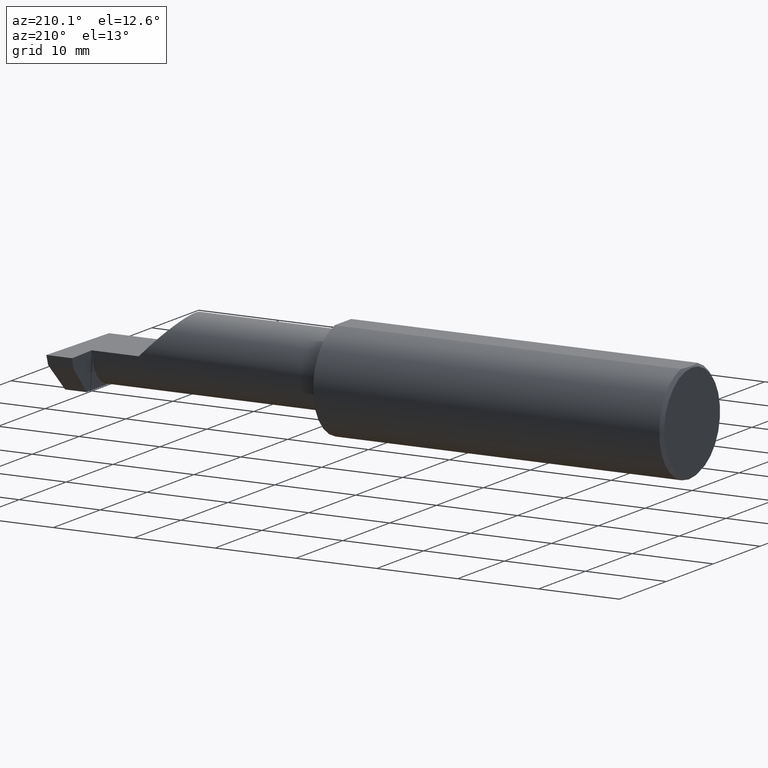
[diagram: clean part render]
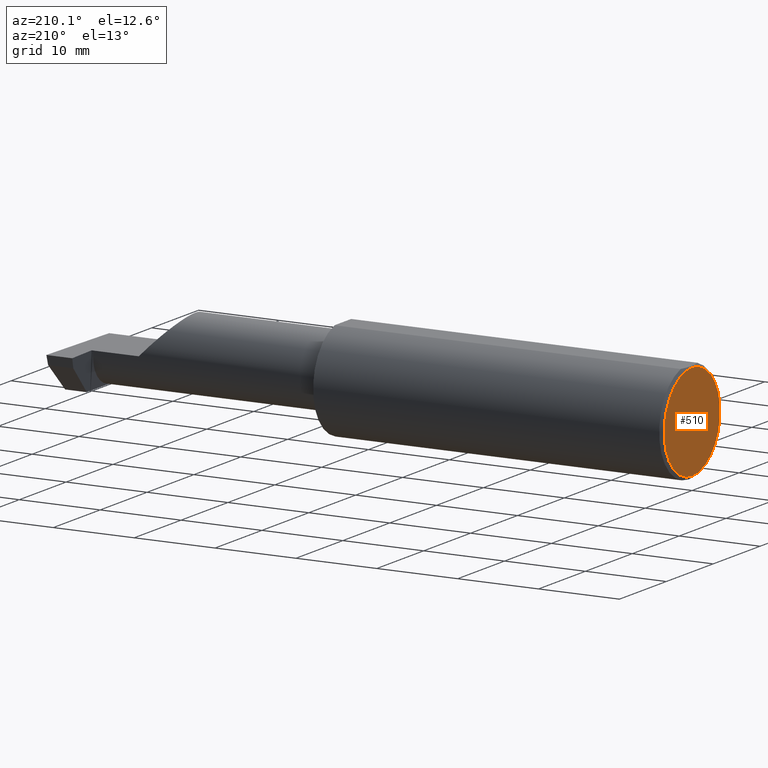
[diagram: same view with one face highlighted and labeled with its STEP entity id]
A machine part, auxiliary view. The second image highlights one B-rep face of the part: STEP entity #510.
In plain terms, the highlighted planar face has unit normal (1, 0, 0).
Its self-contained STEP definition (entity closure, byte-faithful):
#31 = DIRECTION ( 'NONE',  ( 0.000000000000000000, 0.000000000000000000, 1.000000000000000000 ) ) ;
#56 = DIRECTION ( 'NONE',  ( -1.000000000000000000, -0.000000000000000000, -0.000000000000000000 ) ) ;
#59 = ORIENTED_EDGE ( 'NONE', *, *, #182, .T. ) ;
#88 = CARTESIAN_POINT ( 'NONE',  ( 0.000000000000000000, 0.000000000000000000, 0.000000000000000000 ) ) ;
#118 = AXIS2_PLACEMENT_3D ( 'NONE', #88, #206, #282 ) ;
#144 = AXIS2_PLACEMENT_3D ( 'NONE', #777, #56, #654 ) ;
#151 = CARTESIAN_POINT ( 'NONE',  ( 0.000000000000000000, 0.000000000000000000, 0.000000000000000000 ) ) ;
#182 = EDGE_CURVE ( 'NONE', #423, #769, #494, .T. ) ;
#206 = DIRECTION ( 'NONE',  ( 1.000000000000000000, 0.000000000000000000, 0.000000000000000000 ) ) ;
#282 = DIRECTION ( 'NONE',  ( 0.000000000000000000, 0.000000000000000000, -1.000000000000000000 ) ) ;
#312 = EDGE_LOOP ( 'NONE', ( #717, #59 ) ) ;
#320 = CARTESIAN_POINT ( 'NONE',  ( 0.000000000000000000, 0.000000000000000000, -0.2348499999999999754 ) ) ;
#400 = CARTESIAN_POINT ( 'NONE',  ( 0.000000000000000000, 2.967931517733610643E-17, 0.2348499999999999754 ) ) ;
#423 = VERTEX_POINT ( 'NONE', #400 ) ;
#469 = EDGE_CURVE ( 'NONE', #769, #423, #482, .T. ) ;
#482 = CIRCLE ( 'NONE', #631, 0.2348499999999999754 ) ;
#494 = CIRCLE ( 'NONE', #144, 0.2348499999999999754 ) ;
#510 = ADVANCED_FACE ( 'NONE', ( #647 ), #767, .F. ) ;
#631 = AXIS2_PLACEMENT_3D ( 'NONE', #151, #688, #31 ) ;
#647 = FACE_OUTER_BOUND ( 'NONE', #312, .T. ) ;
#654 = DIRECTION ( 'NONE',  ( 0.000000000000000000, 0.000000000000000000, 1.000000000000000000 ) ) ;
#688 = DIRECTION ( 'NONE',  ( -1.000000000000000000, -0.000000000000000000, -0.000000000000000000 ) ) ;
#717 = ORIENTED_EDGE ( 'NONE', *, *, #469, .T. ) ;
#767 = PLANE ( 'NONE',  #118 ) ;
#769 = VERTEX_POINT ( 'NONE', #320 ) ;
#777 = CARTESIAN_POINT ( 'NONE',  ( 0.000000000000000000, 0.000000000000000000, 0.000000000000000000 ) ) ;